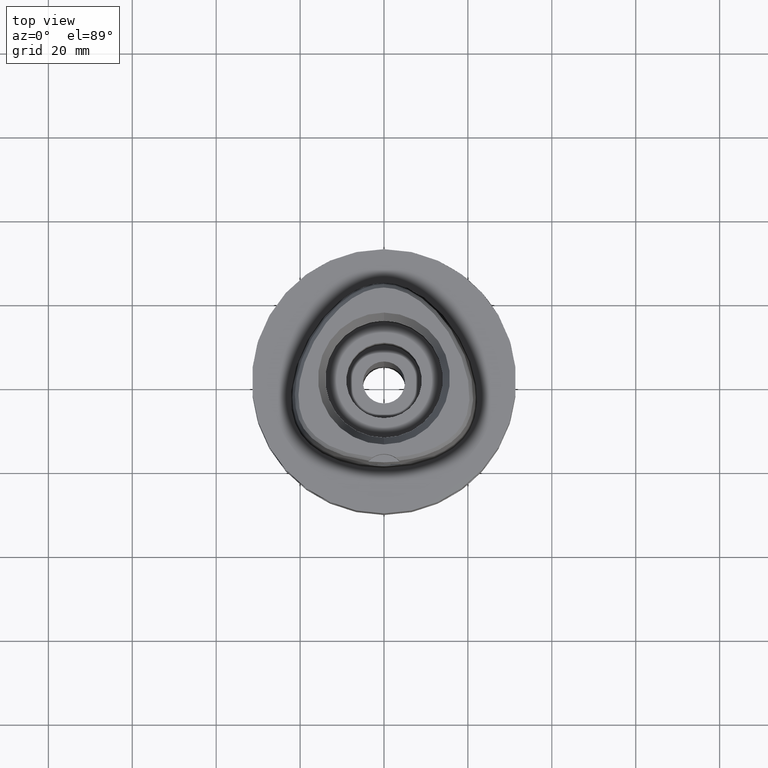
[diagram: clean part render]
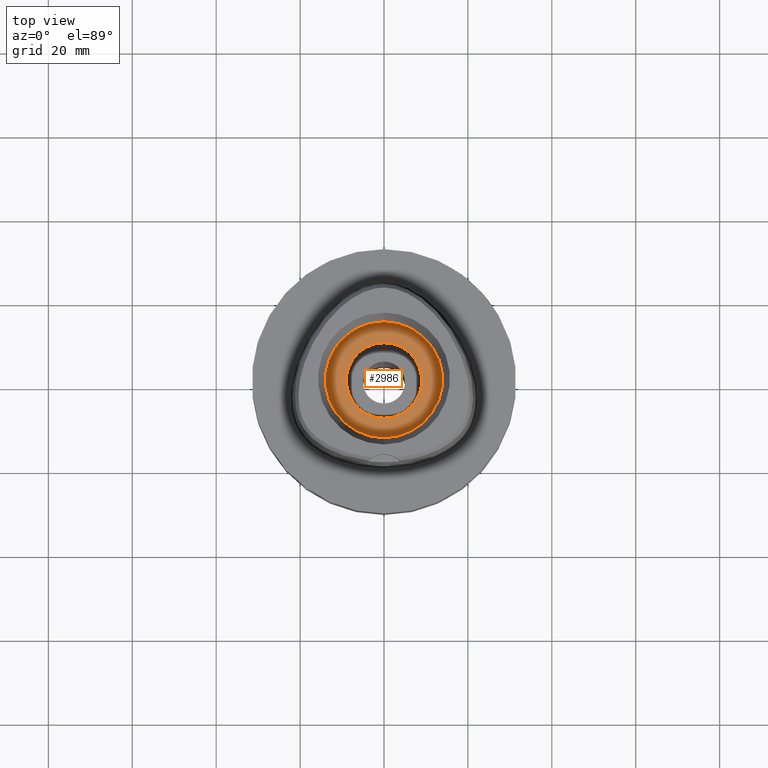
[diagram: same view with one face highlighted and labeled with its STEP entity id]
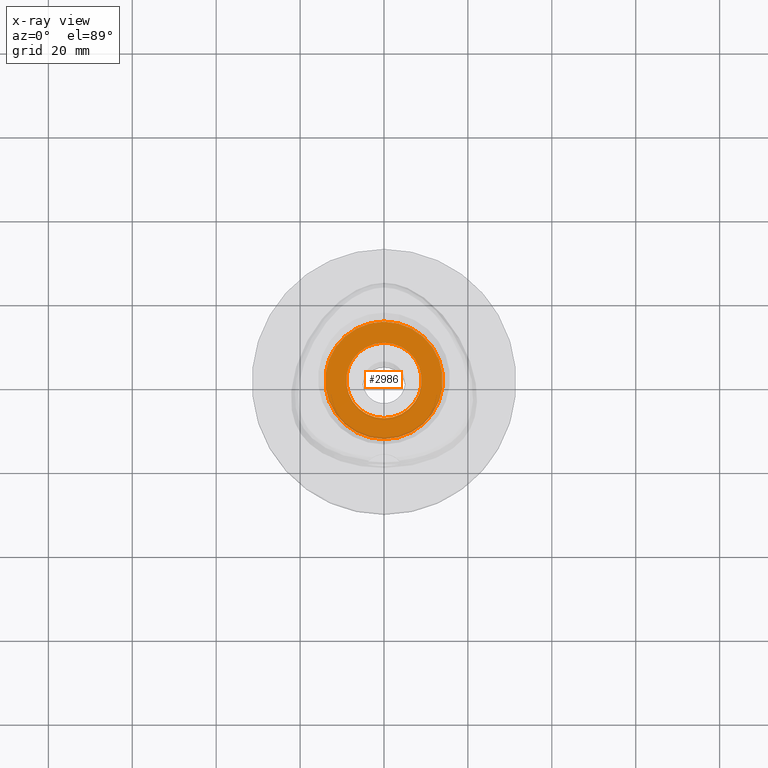
[diagram: x-ray of the same camera — body ghosted, the highlighted face saturated]
A machine part, top view. The second image highlights one B-rep face of the part: STEP entity #2986.
The next image is the same camera in x-ray: the body ghosted, the highlighted face saturated — about 2% of this face is hidden behind the body in this view.
In plain terms, the highlighted planar face has unit normal (0, 0, -1).
Its self-contained STEP definition (entity closure, byte-faithful):
#878=CARTESIAN_POINT('',(0.E0,0.E0,1.1E1));
#879=DIRECTION('',(0.E0,0.E0,-1.E0));
#880=DIRECTION('',(0.E0,1.E0,0.E0));
#881=AXIS2_PLACEMENT_3D('',#878,#879,#880);
#886=CARTESIAN_POINT('',(0.E0,0.E0,1.1E1));
#887=DIRECTION('',(0.E0,0.E0,-1.E0));
#888=DIRECTION('',(0.E0,-1.E0,0.E0));
#889=AXIS2_PLACEMENT_3D('',#886,#887,#888);
#894=CARTESIAN_POINT('',(0.E0,0.E0,1.1E1));
#895=DIRECTION('',(0.E0,0.E0,1.E0));
#896=DIRECTION('',(0.E0,1.E0,0.E0));
#897=AXIS2_PLACEMENT_3D('',#894,#895,#896);
#902=CARTESIAN_POINT('',(0.E0,0.E0,1.1E1));
#903=DIRECTION('',(0.E0,0.E0,1.E0));
#904=DIRECTION('',(0.E0,-1.E0,0.E0));
#905=AXIS2_PLACEMENT_3D('',#902,#903,#904);
#1812=CARTESIAN_POINT('',(0.E0,9.E0,1.1E1));
#1813=VERTEX_POINT('',#1812);
#1814=CARTESIAN_POINT('',(0.E0,-9.E0,1.1E1));
#1815=VERTEX_POINT('',#1814);
#1816=CARTESIAN_POINT('',(0.E0,1.4E1,1.1E1));
#1817=CARTESIAN_POINT('',(0.E0,-1.4E1,1.1E1));
#1818=VERTEX_POINT('',#1816);
#1819=VERTEX_POINT('',#1817);
#2971=CARTESIAN_POINT('',(0.E0,0.E0,1.1E1));
#2972=DIRECTION('',(0.E0,0.E0,-1.E0));
#2973=DIRECTION('',(0.E0,-1.E0,0.E0));
#2974=AXIS2_PLACEMENT_3D('',#2971,#2972,#2973);
#2975=PLANE('',#2974);
#2977=ORIENTED_EDGE('',*,*,#2976,.T.);
#2979=ORIENTED_EDGE('',*,*,#2978,.T.);
#2980=EDGE_LOOP('',(#2977,#2979));
#2981=FACE_OUTER_BOUND('',#2980,.F.);
#2982=ORIENTED_EDGE('',*,*,#2953,.T.);
#2983=ORIENTED_EDGE('',*,*,#2966,.T.);
#2984=EDGE_LOOP('',(#2982,#2983));
#2985=FACE_BOUND('',#2984,.F.);
#882=CIRCLE('',#881,1.4E1);
#890=CIRCLE('',#889,1.4E1);
#898=CIRCLE('',#897,9.E0);
#906=CIRCLE('',#905,9.E0);
#2953=EDGE_CURVE('',#1813,#1815,#898,.T.);
#2966=EDGE_CURVE('',#1815,#1813,#906,.T.);
#2976=EDGE_CURVE('',#1818,#1819,#882,.T.);
#2978=EDGE_CURVE('',#1819,#1818,#890,.T.);
#2986=ADVANCED_FACE('',(#2981,#2985),#2975,.F.);